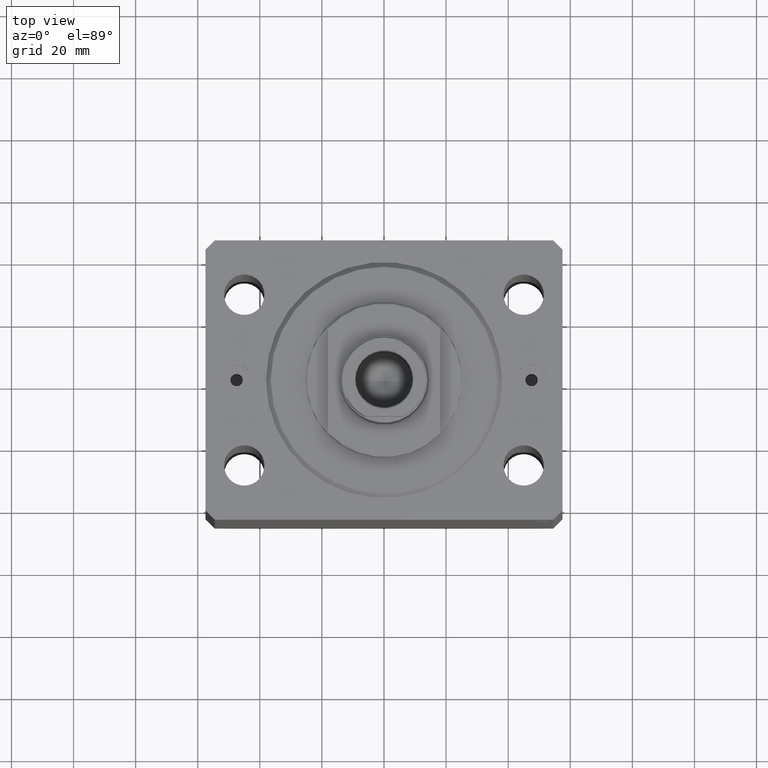
[diagram: clean part render]
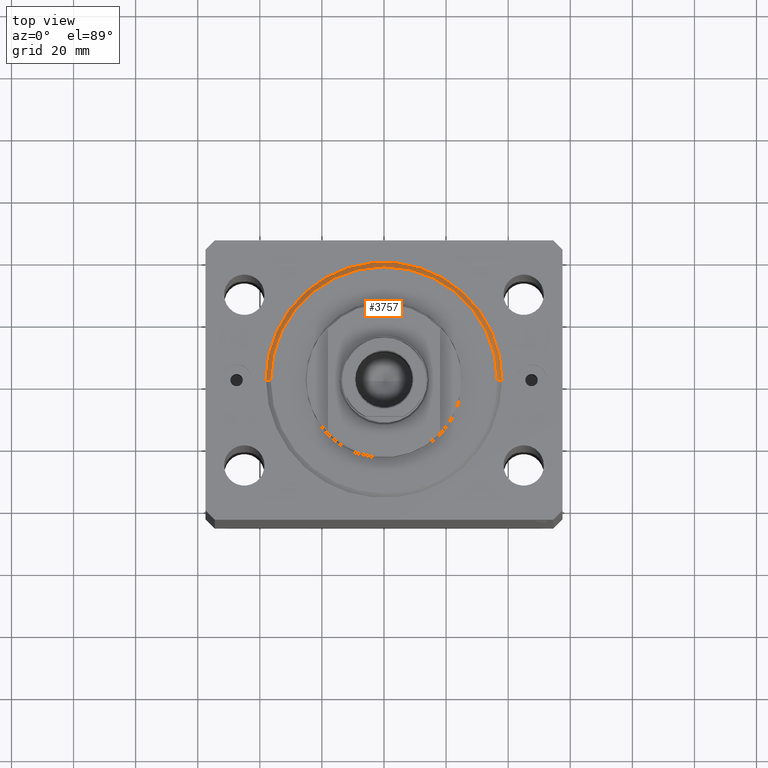
[diagram: same view with one face highlighted and labeled with its STEP entity id]
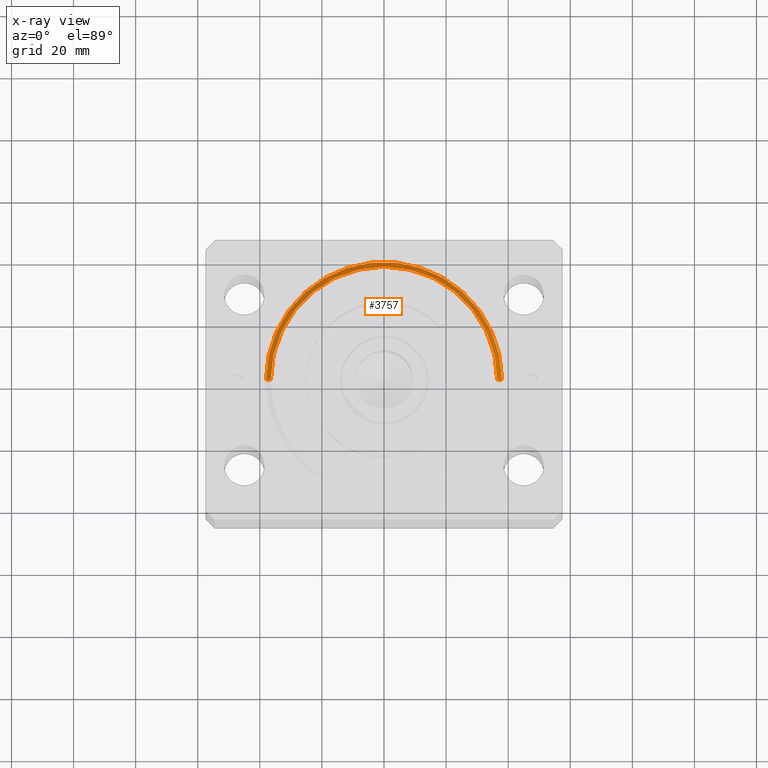
[diagram: x-ray of the same camera — body ghosted, the highlighted face saturated]
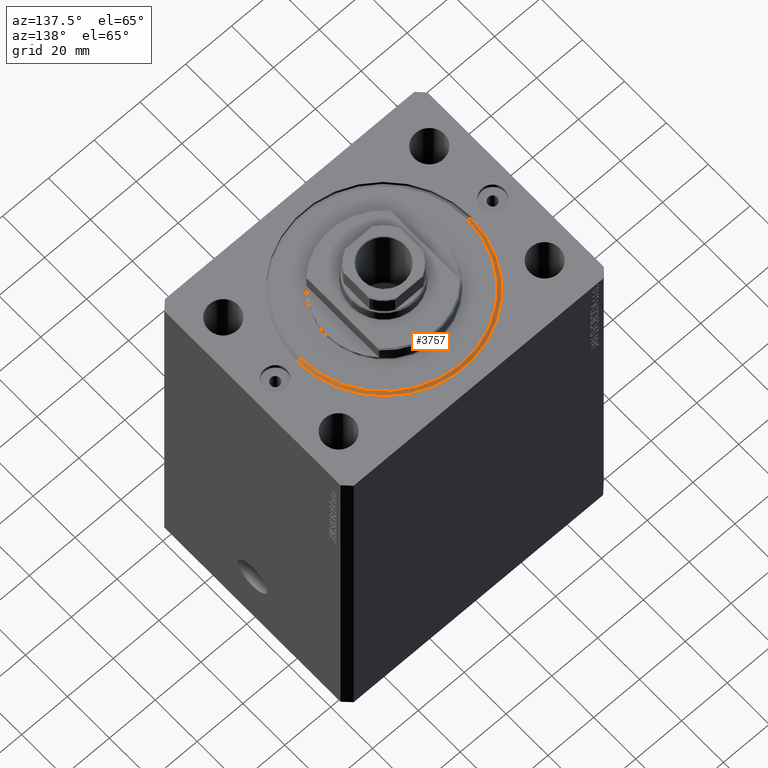
[diagram: same view with one face highlighted and labeled with its STEP entity id]
A machine part, top view. The second image highlights one B-rep face of the part: STEP entity #3757.
The next image is the same camera in x-ray: the body ghosted, the highlighted face saturated — about 0% of this face is hidden behind the body in this view.
A second angle (auxiliary view) of the same face is appended — the face is thin or edge-on in the first view.
In plain terms, the highlighted conical surface has half-angle 45 deg.
Its self-contained STEP definition (entity closure, byte-faithful):
#316 = EDGE_CURVE ( 'NONE', #31031, #15720, #24836, .T. ) ;
#750 = EDGE_LOOP ( 'NONE', ( #31911, #33018, #16718, #24597 ) ) ;
#1419 = AXIS2_PLACEMENT_3D ( 'NONE', #35876, #5067, #21928 ) ;
#3757 = ADVANCED_FACE ( 'NONE', ( #14934 ), #28777, .T. ) ;
#4071 = CARTESIAN_POINT ( 'NONE',  ( 38.00000000000000000, 0.000000000000000000, 1.499999999999987566 ) ) ;
#4345 = AXIS2_PLACEMENT_3D ( 'NONE', #32263, #28231, #42625 ) ;
#4517 = LINE ( 'NONE', #4071, #22875 ) ;
#5067 = DIRECTION ( 'NONE',  ( -0.000000000000000000, -0.000000000000000000, 1.000000000000000000 ) ) ;
#5153 = CARTESIAN_POINT ( 'NONE',  ( 38.00000000000000000, 4.653657836759941941E-15, 1.499999999999987566 ) ) ;
#11335 = CARTESIAN_POINT ( 'NONE',  ( -38.00000000000000000, 4.653657836759941152E-15, 1.499999999999987566 ) ) ;
#13613 = CIRCLE ( 'NONE', #41641, 36.50000000000000000 ) ;
#14934 = FACE_OUTER_BOUND ( 'NONE', #750, .T. ) ;
#15720 = VERTEX_POINT ( 'NONE', #22854 ) ;
#15729 = VECTOR ( 'NONE', #17193, 1000.000000000000114 ) ;
#16718 = ORIENTED_EDGE ( 'NONE', *, *, #31166, .F. ) ;
#17193 = DIRECTION ( 'NONE',  ( -0.7071067811865507924, 8.659560562354972301E-17, 0.7071067811865441310 ) ) ;
#20790 = CIRCLE ( 'NONE', #1419, 38.00000000000000000 ) ;
#21928 = DIRECTION ( 'NONE',  ( 1.000000000000000000, 0.000000000000000000, 0.000000000000000000 ) ) ;
#22854 = CARTESIAN_POINT ( 'NONE',  ( -38.00000000000000000, 0.000000000000000000, 1.499999999999987566 ) ) ;
#22875 = VECTOR ( 'NONE', #42530, 1000.000000000000114 ) ;
#24597 = ORIENTED_EDGE ( 'NONE', *, *, #41544, .F. ) ;
#24836 = LINE ( 'NONE', #11335, #15729 ) ;
#26466 = EDGE_CURVE ( 'NONE', #31031, #43466, #13613, .T. ) ;
#27287 = CARTESIAN_POINT ( 'NONE',  ( 0.000000000000000000, 0.000000000000000000, 0.000000000000000000 ) ) ;
#28231 = DIRECTION ( 'NONE',  ( -0.000000000000000000, -0.000000000000000000, 1.000000000000000000 ) ) ;
#28777 = CONICAL_SURFACE ( 'NONE', #4345, 38.00000000000000000, 0.7853981633974529419 ) ;
#29058 = CARTESIAN_POINT ( 'NONE',  ( 36.50000000000000000, 0.000000000000000000, 0.000000000000000000 ) ) ;
#30001 = VERTEX_POINT ( 'NONE', #5153 ) ;
#31031 = VERTEX_POINT ( 'NONE', #36381 ) ;
#31166 = EDGE_CURVE ( 'NONE', #30001, #15720, #20790, .T. ) ;
#31911 = ORIENTED_EDGE ( 'NONE', *, *, #26466, .F. ) ;
#32263 = CARTESIAN_POINT ( 'NONE',  ( 0.000000000000000000, 0.000000000000000000, 1.499999999999987566 ) ) ;
#33018 = ORIENTED_EDGE ( 'NONE', *, *, #316, .T. ) ;
#35876 = CARTESIAN_POINT ( 'NONE',  ( 0.000000000000000000, 0.000000000000000000, 1.499999999999987566 ) ) ;
#36381 = CARTESIAN_POINT ( 'NONE',  ( -36.50000000000000000, 4.561809326823889791E-15, 0.000000000000000000 ) ) ;
#38063 = DIRECTION ( 'NONE',  ( -0.000000000000000000, -0.000000000000000000, -1.000000000000000000 ) ) ;
#41544 = EDGE_CURVE ( 'NONE', #43466, #30001, #4517, .T. ) ;
#41641 = AXIS2_PLACEMENT_3D ( 'NONE', #27287, #38063, #41650 ) ;
#41650 = DIRECTION ( 'NONE',  ( 1.000000000000000000, 0.000000000000000000, 0.000000000000000000 ) ) ;
#42530 = DIRECTION ( 'NONE',  ( 0.7071067811865507924, 0.000000000000000000, 0.7071067811865441310 ) ) ;
#42625 = DIRECTION ( 'NONE',  ( 1.000000000000000000, 0.000000000000000000, 0.000000000000000000 ) ) ;
#43466 = VERTEX_POINT ( 'NONE', #29058 ) ;